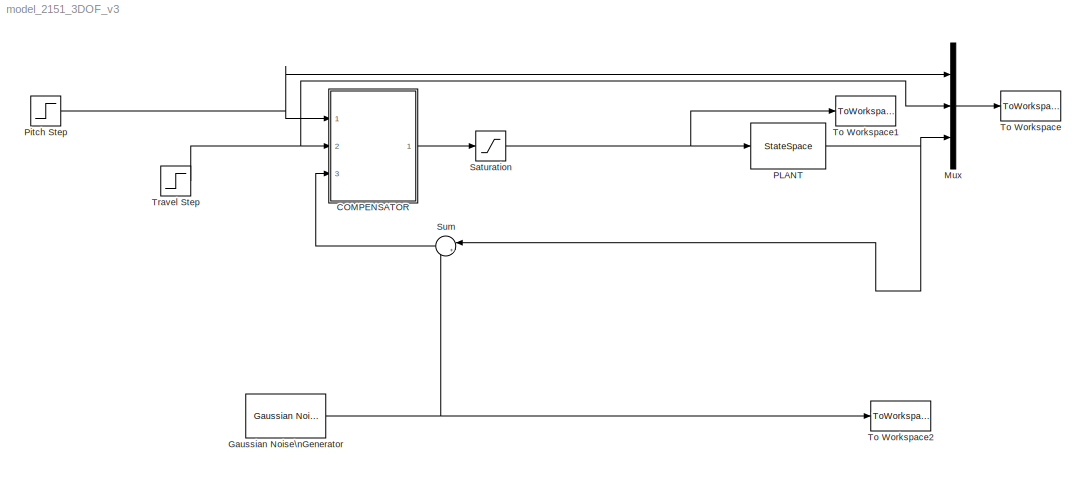
MODEL model_2151_3DOF_v3
KIND model
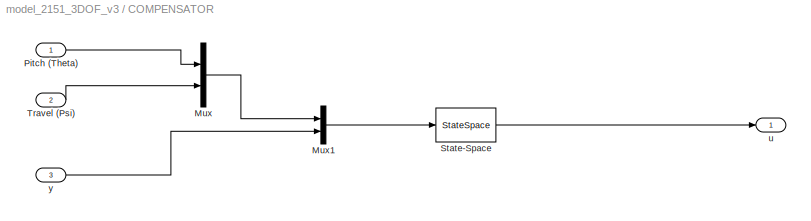
BLOCK [SubSystem] COMPENSATOR
  FunctionWithSeparateData = off
  MaskHideContents = off
  MinAlgLoopOccurrences = off
  Opaque = off
  Ports = [3, 1]
  PropExecContextOutsideSubsystem = off
  RTWSystemCode = Auto
  RequestExecContextInheritance = off
  SID = 3
BLOCK [Mux] COMPENSATOR/Mux
  DisplayOption = bar
  Inputs = 2
  Ports = [2, 1]
  SID = 29
BLOCK [Mux] COMPENSATOR/Mux1
  DisplayOption = bar
  Inputs = 2
  Ports = [2, 1]
  SID = 31
BLOCK [Inport] COMPENSATOR/Pitch (Theta)
  IconDisplay = Port number
  SID = 4
BLOCK [StateSpace] COMPENSATOR/State-Space
  A = A_COMP
  B = B_COMP
  C = C_COMP
  D = D_COMP
  SID = 30
BLOCK [Inport] COMPENSATOR/Travel (Psi)
  IconDisplay = Port number
  Port = 2
  SID = 28
BLOCK [Outport] COMPENSATOR/u
  IconDisplay = Port number
  SID = 5
BLOCK [Inport] COMPENSATOR/y
  IconDisplay = Port number
  Port = 3
  SID = 11
BLOCK [Reference] Gaussian Noise\nGenerator  REF=commnoisgen2/Gaussian Noise\nGenerator
  Ports = [0, 1]
  SID = 25
  SourceBlock = commnoisgen2/Gaussian Noise\nGenerator
  SourceType = Gaussian Noise Generator
  Ts = t_noise
  d = noise_var
  frameBased = off
  m = 0
  orient = off
  outDataType = double
  s = 41
  sampPerFrame = 1
BLOCK [Mux] Mux
  DisplayOption = bar
  Inputs = 3
  Ports = [3, 1]
  SID = 42
BLOCK [StateSpace] PLANT
  A = Aq
  B = Bq
  C = Cq
  D = Dq
  SID = 1
BLOCK [Step] Pitch Step
  After = r_theta
  SID = 17
  SampleTime = 0
  Time = t_theta
BLOCK [Saturate] Saturation
  InputPortMap = u0
  LowerLimit = -V_sat
  Ports = [1, 1]
  SID = 41
  UpperLimit = V_sat
BLOCK [Sum] Sum
  IconShape = round
  InputSameDT = off
  Inputs = |++
  OutDataTypeStr = Inherit: Inherit via internal rule
  Ports = [2, 1]
  SID = 26
  SaturateOnIntegerOverflow = off
BLOCK [ToWorkspace] To Workspace
  MaxDataPoints = inf
  Ports = [1]
  SID = 15
  SampleTime = -1
  SaveFormat = Structure With Time
  VariableName = output
BLOCK [ToWorkspace] To Workspace1
  MaxDataPoints = inf
  Ports = [1]
  SID = 22
  SampleTime = -1
  SaveFormat = Structure With Time
  VariableName = conteff
BLOCK [ToWorkspace] To Workspace2
  MaxDataPoints = inf
  Ports = [1]
  SID = 27
  SampleTime = -1
  SaveFormat = Structure With Time
  VariableName = noise
BLOCK [Step] Travel Step
  After = r_psi
  SID = 32
  SampleTime = 0
  Time = t_psi
LINE COMPENSATOR/Mux1:1 -> COMPENSATOR/State-Space:1
LINE COMPENSATOR/Mux:1 -> COMPENSATOR/Mux1:1
LINE COMPENSATOR/Pitch (Theta):1 -> COMPENSATOR/Mux:1
LINE COMPENSATOR/State-Space:1 -> COMPENSATOR/u:1
LINE COMPENSATOR/Travel (Psi):1 -> COMPENSATOR/Mux:2
LINE COMPENSATOR/y:1 -> COMPENSATOR/Mux1:2
LINE COMPENSATOR:1 -> Saturation:1
NET Gaussian Noise\nGenerator:1 -> Sum:2, To Workspace2:1
LINE Mux:1 -> To Workspace:1
NET PLANT:1 -> Mux:3, Sum:1
NET Pitch Step:1 -> COMPENSATOR:1, Mux:1
NET Saturation:1 -> PLANT:1, To Workspace1:1
LINE Sum:1 -> COMPENSATOR:3
NET Travel Step:1 -> COMPENSATOR:2, Mux:2
note: NET lines group one-source signal fan-out (src -> all destinations, sorted); 1:1 wires keep LINE
